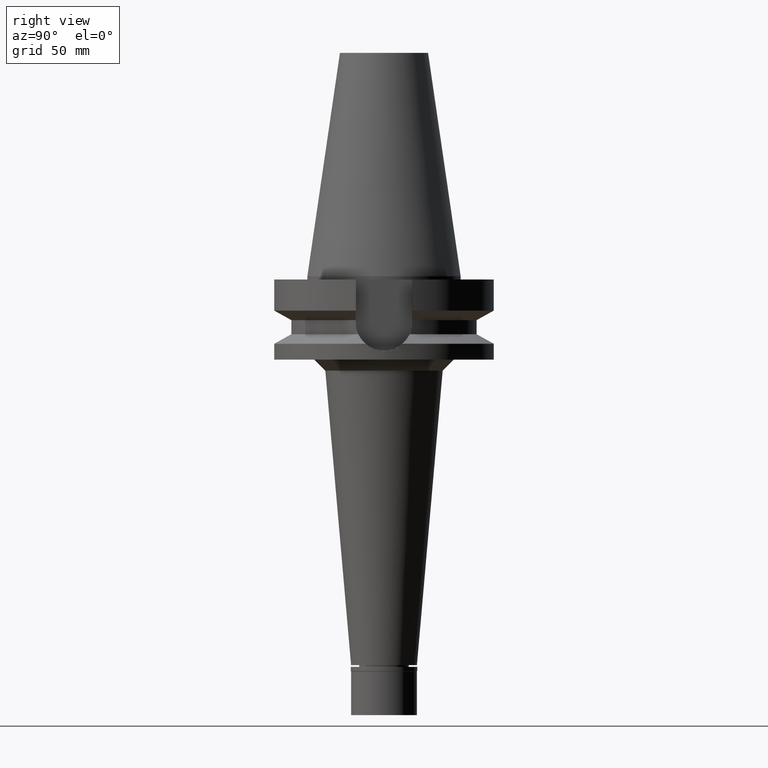
[diagram: clean part render]
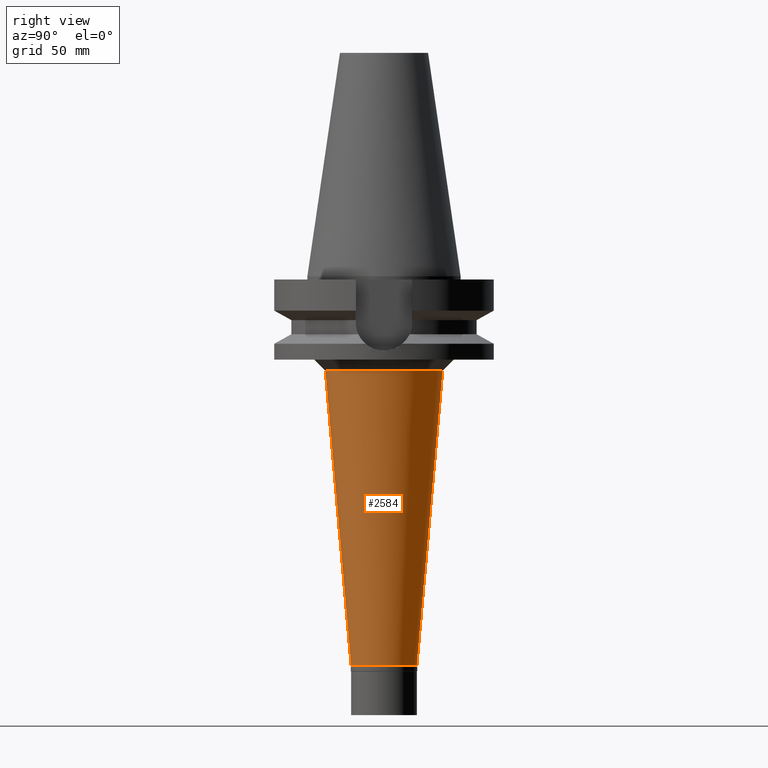
[diagram: same view with one face highlighted and labeled with its STEP entity id]
A machine part, right view. The second image highlights one B-rep face of the part: STEP entity #2584.
In plain terms, the highlighted conical surface has half-angle 5 deg.
Its self-contained STEP definition (entity closure, byte-faithful):
#87 = VERTEX_POINT ( 'NONE', #94 ) ;
#90 = DIRECTION ( 'NONE',  ( 0.0000000000000000000, 0.08715574274766389740, -0.9961946980917451011 ) ) ;
#94 = CARTESIAN_POINT ( 'NONE',  ( 0.0000000000000000000, -15.00000000000000000, -177.1999999999999886 ) ) ;
#228 = AXIS2_PLACEMENT_3D ( 'NONE', #904, #1419, #2392 ) ;
#295 = DIRECTION ( 'NONE',  ( 0.0000000000000000000, 0.0000000000000000000, 1.000000000000000000 ) ) ;
#308 = EDGE_LOOP ( 'NONE', ( #2298, #1483, #566, #1582 ) ) ;
#358 = EDGE_CURVE ( 'NONE', #87, #2093, #1384, .T. ) ;
#377 = CARTESIAN_POINT ( 'NONE',  ( 0.0000000000000000000, -26.74097864517999668, -43.00000000000000000 ) ) ;
#566 = ORIENTED_EDGE ( 'NONE', *, *, #358, .T. ) ;
#571 = EDGE_CURVE ( 'NONE', #1517, #87, #2807, .T. ) ;
#647 = CIRCLE ( 'NONE', #1071, 26.74097864517999668 ) ;
#786 = CARTESIAN_POINT ( 'NONE',  ( 0.0000000000000000000, 26.74097864517999668, -43.00000000000000000 ) ) ;
#904 = CARTESIAN_POINT ( 'NONE',  ( 0.0000000000000000000, 0.0000000000000000000, -110.1000000000000085 ) ) ;
#954 = DIRECTION ( 'NONE',  ( 0.0000000000000000000, -1.000000000000000000, 0.0000000000000000000 ) ) ;
#1010 = CARTESIAN_POINT ( 'NONE',  ( 0.0000000000000000000, 0.0000000000000000000, -177.1999999999999886 ) ) ;
#1071 = AXIS2_PLACEMENT_3D ( 'NONE', #1406, #295, #1524 ) ;
#1201 = EDGE_CURVE ( 'NONE', #2237, #2093, #1590, .T. ) ;
#1384 = CIRCLE ( 'NONE', #3169, 15.00000000000000000 ) ;
#1406 = CARTESIAN_POINT ( 'NONE',  ( 0.0000000000000000000, 0.0000000000000000000, -43.00000000000000000 ) ) ;
#1419 = DIRECTION ( 'NONE',  ( 0.0000000000000000000, 0.0000000000000000000, 1.000000000000000000 ) ) ;
#1474 = CARTESIAN_POINT ( 'NONE',  ( 0.0000000000000000000, 15.00000000000000000, -177.1999999999999886 ) ) ;
#1483 = ORIENTED_EDGE ( 'NONE', *, *, #571, .T. ) ;
#1517 = VERTEX_POINT ( 'NONE', #377 ) ;
#1524 = DIRECTION ( 'NONE',  ( 0.0000000000000000000, -1.000000000000000000, 0.0000000000000000000 ) ) ;
#1582 = ORIENTED_EDGE ( 'NONE', *, *, #1201, .F. ) ;
#1590 = LINE ( 'NONE', #1847, #1864 ) ;
#1847 = CARTESIAN_POINT ( 'NONE',  ( 0.0000000000000000000, 26.74097864517999668, -43.00000000000000000 ) ) ;
#1864 = VECTOR ( 'NONE', #2328, 1000.000000000000114 ) ;
#2093 = VERTEX_POINT ( 'NONE', #1474 ) ;
#2189 = DIRECTION ( 'NONE',  ( 0.0000000000000000000, 0.0000000000000000000, 1.000000000000000000 ) ) ;
#2237 = VERTEX_POINT ( 'NONE', #786 ) ;
#2298 = ORIENTED_EDGE ( 'NONE', *, *, #2726, .F. ) ;
#2328 = DIRECTION ( 'NONE',  ( 0.0000000000000000000, -0.08715574274766389740, -0.9961946980917451011 ) ) ;
#2392 = DIRECTION ( 'NONE',  ( 0.0000000000000000000, 1.000000000000000000, 0.0000000000000000000 ) ) ;
#2427 = FACE_OUTER_BOUND ( 'NONE', #308, .T. ) ;
#2559 = CONICAL_SURFACE ( 'NONE', #228, 20.87048932259000367, 0.08726646259969973729 ) ;
#2584 = ADVANCED_FACE ( 'NONE', ( #2427 ), #2559, .T. ) ;
#2726 = EDGE_CURVE ( 'NONE', #1517, #2237, #647, .T. ) ;
#2807 = LINE ( 'NONE', #3082, #3019 ) ;
#3019 = VECTOR ( 'NONE', #90, 1000.000000000000114 ) ;
#3082 = CARTESIAN_POINT ( 'NONE',  ( 0.0000000000000000000, -26.74097864517999668, -43.00000000000000000 ) ) ;
#3169 = AXIS2_PLACEMENT_3D ( 'NONE', #1010, #2189, #954 ) ;